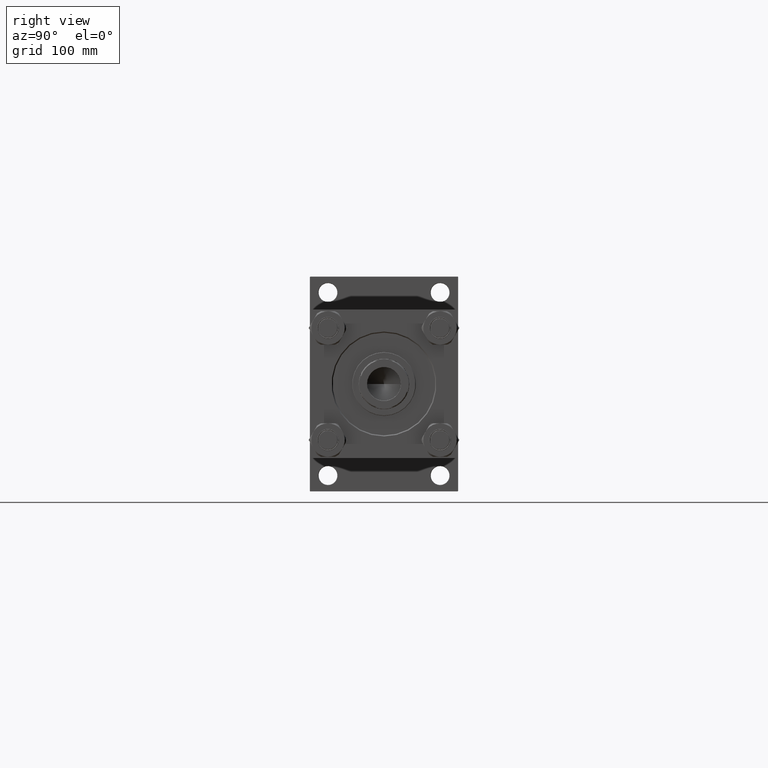
[diagram: clean part render]
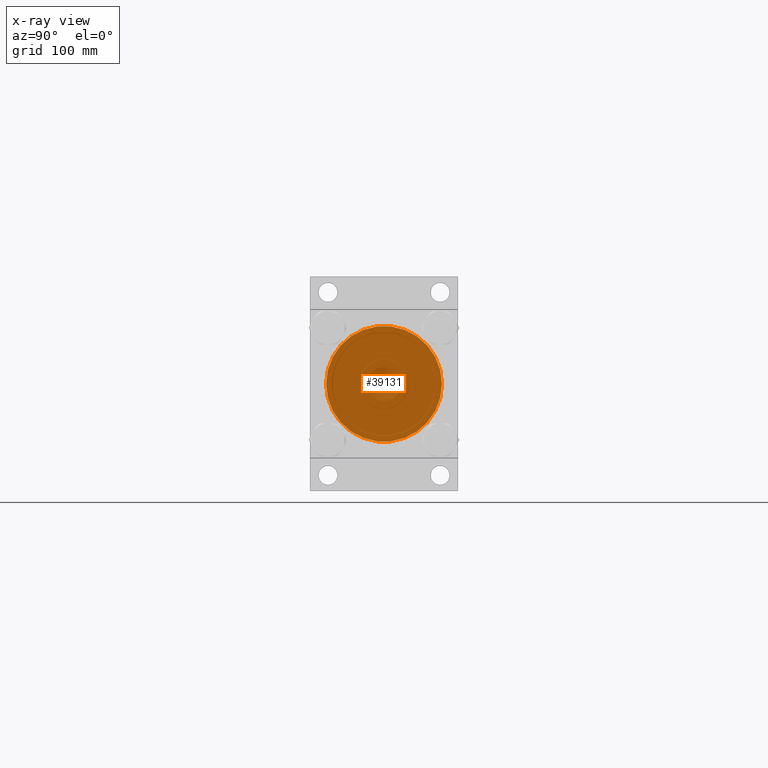
[diagram: x-ray — body ghosted, one internal face saturated and labeled with its STEP entity id]
A machine part, right view, then the same camera in x-ray: the body is ghosted and one INTERNAL B-rep face — a face not visible from any outside direction — is saturated and labeled: STEP entity #39131.
In plain terms, the highlighted planar face has unit normal (1, 0, 0).
Its self-contained STEP definition (entity closure, byte-faithful):
#1091 = EDGE_LOOP ( 'NONE', ( #8035, #8039 ) ) ;
#2515 = EDGE_CURVE ( 'NONE', #48185, #17428, #28250, .T. ) ;
#2623 = DIRECTION ( 'NONE',  ( 1.000000000000000000, 0.000000000000000000, 0.000000000000000000 ) ) ;
#4059 = DIRECTION ( 'NONE',  ( 1.000000000000000000, 0.000000000000000000, -0.000000000000000000 ) ) ;
#6505 = AXIS2_PLACEMENT_3D ( 'NONE', #18273, #33841, #14431 ) ;
#7444 = CARTESIAN_POINT ( 'NONE',  ( -80.00000000000000000, 0.000000000000000000, 0.000000000000000000 ) ) ;
#8035 = ORIENTED_EDGE ( 'NONE', *, *, #10761, .F. ) ;
#8039 = ORIENTED_EDGE ( 'NONE', *, *, #2515, .F. ) ;
#8926 = CIRCLE ( 'NONE', #6505, 80.00000000000000000 ) ;
#10761 = EDGE_CURVE ( 'NONE', #17428, #48185, #8926, .T. ) ;
#10933 = CARTESIAN_POINT ( 'NONE',  ( 80.00000000000000000, 9.797174393178826052E-15, 0.000000000000000000 ) ) ;
#14431 = DIRECTION ( 'NONE',  ( 1.000000000000000000, 0.000000000000000000, 0.000000000000000000 ) ) ;
#16348 = DIRECTION ( 'NONE',  ( 0.000000000000000000, 0.000000000000000000, 1.000000000000000000 ) ) ;
#17428 = VERTEX_POINT ( 'NONE', #7444 ) ;
#18273 = CARTESIAN_POINT ( 'NONE',  ( 0.000000000000000000, 0.000000000000000000, 0.000000000000000000 ) ) ;
#18682 = FACE_OUTER_BOUND ( 'NONE', #1091, .T. ) ;
#28250 = CIRCLE ( 'NONE', #35584, 80.00000000000000000 ) ;
#33841 = DIRECTION ( 'NONE',  ( 0.000000000000000000, 0.000000000000000000, 1.000000000000000000 ) ) ;
#34989 = CARTESIAN_POINT ( 'NONE',  ( 0.000000000000000000, 0.000000000000000000, 0.000000000000000000 ) ) ;
#35115 = AXIS2_PLACEMENT_3D ( 'NONE', #34989, #16348, #4059 ) ;
#35584 = AXIS2_PLACEMENT_3D ( 'NONE', #48880, #37632, #2623 ) ;
#37632 = DIRECTION ( 'NONE',  ( 0.000000000000000000, 0.000000000000000000, 1.000000000000000000 ) ) ;
#39131 = ADVANCED_FACE ( 'NONE', ( #18682 ), #39836, .F. ) ;
#39836 = PLANE ( 'NONE',  #35115 ) ;
#48185 = VERTEX_POINT ( 'NONE', #10933 ) ;
#48880 = CARTESIAN_POINT ( 'NONE',  ( 0.000000000000000000, 0.000000000000000000, 0.000000000000000000 ) ) ;